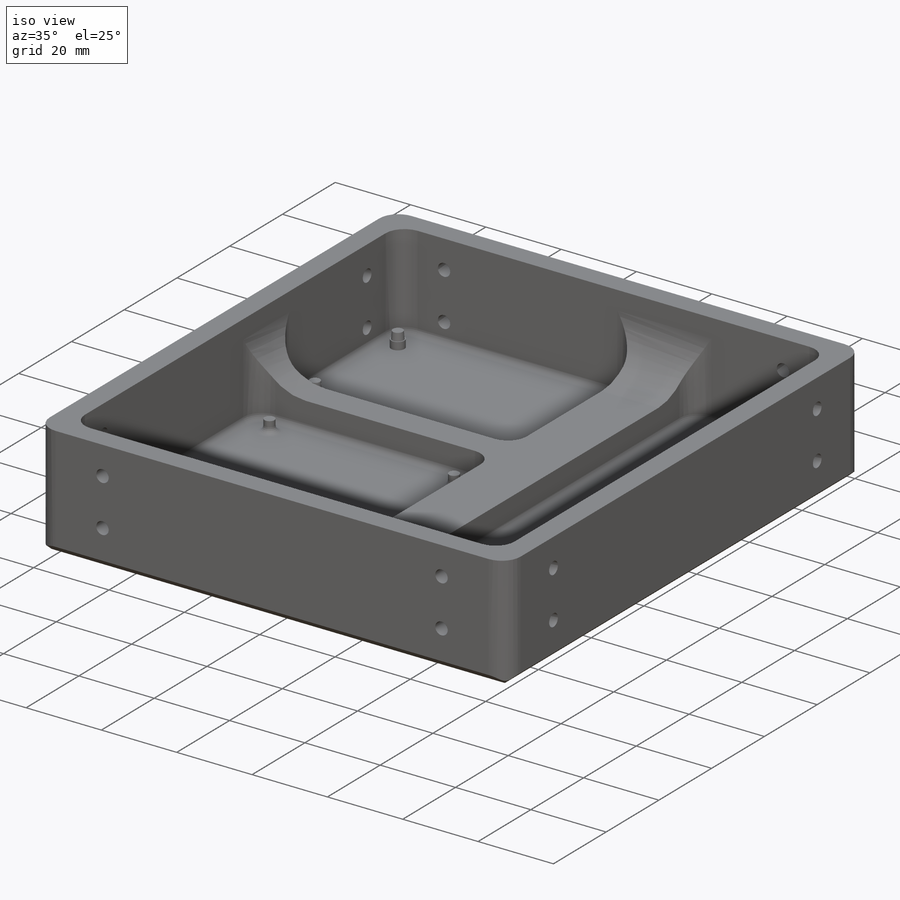
[diagram: iso view]
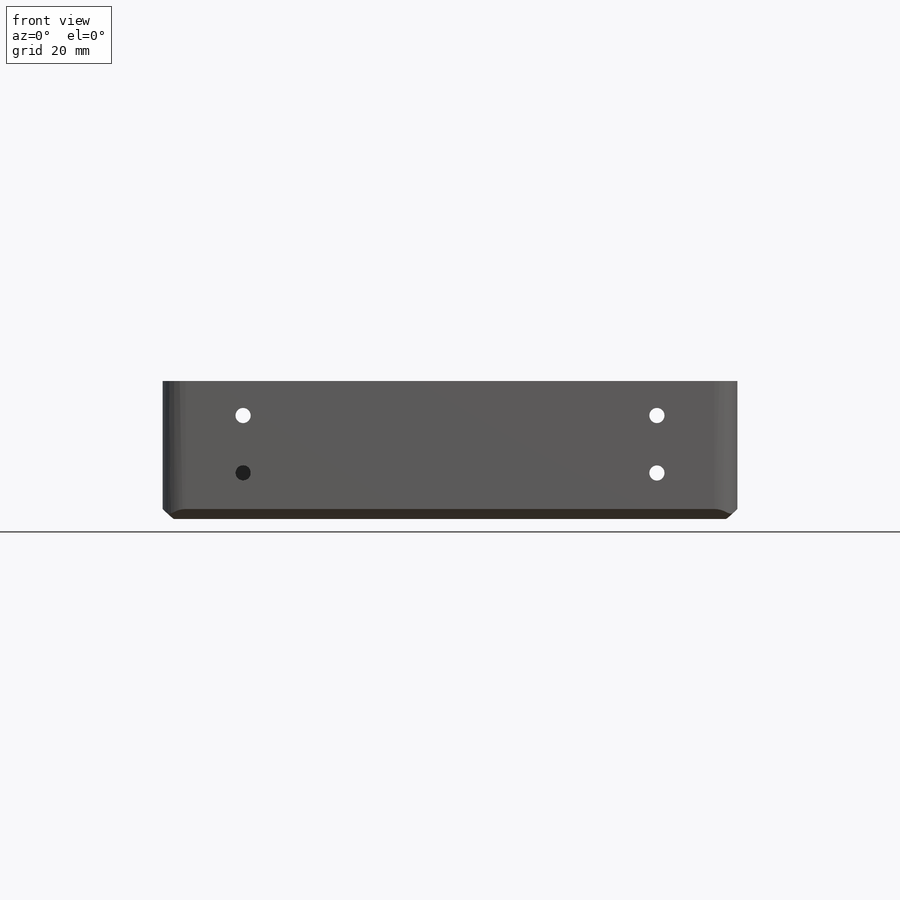
[diagram: front view]
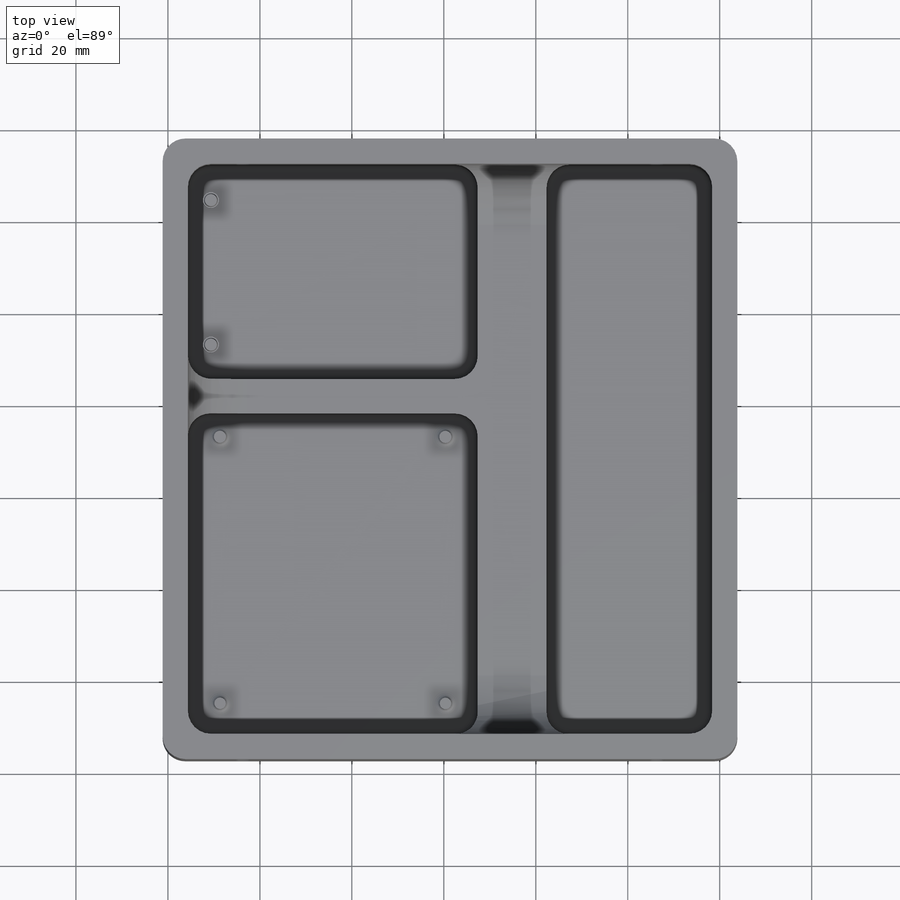
[diagram: top view]
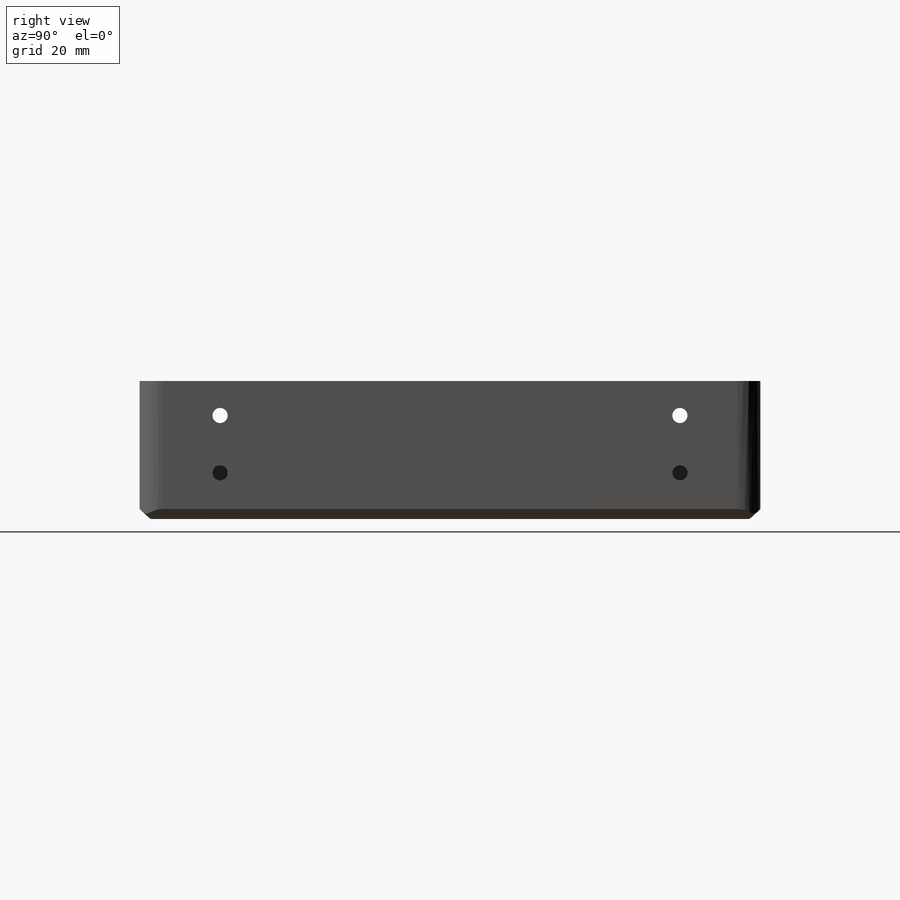
[diagram: right view]
SOLIDWORKS PART (.sldprt)
format: sldprt  version: not decoded by parser v0  size: 770,560 bytes
history: native  units: mm
features: sketch x17, cut_extrude x9, extrude x8, fillet x6, material x1, chamfer x1 (+13 scaffold rows collapsed)
feature tree (55):
  scaffold x13  (default folders/planes/origin — collapsed)
  material  "Material <not specified>"
  sketch  "Sketch1"  dims[D1=140.0mm D2=130.0mm]
  extrude  "Boss-Extrude2"  Depth=10mm
  sketch  "Sketch3"  dims[c1.D1=~3.512433mm c1.D2=~3.69604mm c1.D3=2.4mm c1.D6=2.6mm c1.D7=2.6mm c1.D8=2.6mm c1.D9=2.6mm c2.D1=49.0mm c2.D2=58.0mm c2.D3=49.0mm c2.D4=15.0mm c2.D5=15.0mm]
  extrude  "Boss-Extrude4"  Depth=2mm
  sketch  "Sketch4"  dims[D1=2.3mm D2=2.3mm D3=2.3mm D4=2.3mm]
  extrude  "Boss-Extrude5"  Depth=3mm
  chamfer  "Chamfer1"  Distance=1.5mm Angle=45deg
  sketch  "Sketch5"  dims[D1=10.0mm D2=10.0mm D3=10.0mm D4=10.0mm]
  extrude  "Boss-Extrude6"  Depth=20mm
  sketch  "Sketch7"  dims[D1=8.0mm D2=8.0mm D3=8.0mm D4=8.0mm]
  cut_extrude  "Cut-Extrude2"  [1 undecoded]
  sketch  "Sketch9"  dims[D1=15.0mm D2=36.0mm D3=0.0mm]
  extrude  "Boss-Extrude8"  Depth=5mm
  sketch  "Sketch10"  dims[D1=7.5mm D2=5.0mm]
  extrude  "Boss-Extrude9"  Depth=5mm
  sketch  "Sketch12"
  cut_extrude  "Cut-Extrude6"  Depth=5mm
  sketch  "Sketch14"
  cut_extrude  "Cut-Extrude9"  Depth=7mm
  sketch  "Sketch16"
  cut_extrude  "Cut-Extrude10"  Depth=3mm
  fillet  "Fillet12"  Radius=13mm
  fillet  "Fillet13"  Radius=5mm
  fillet  "Fillet14"  Radius=5mm
  fillet  "Fillet15"  Radius=1.5mm
  sketch  "Sketch24"  dims[c1.D1=~1.824154mm c1.D5=~4.371479mm c1.D6=~2.260183mm c2.D1=12.5mm c2.D2=10.0mm c2.D3=20.0mm c2.D4=20.0mm c2.D5=20.0mm c2.D6=12.5mm c2.D7=10.0mm]
  cut_extrude  "Cut-Extrude16"  Depth=10mm
  sketch  "Sketch25"  dims[c1.D1=~3.085633mm c1.D3=~0.330603mm c1.D4=~3.727745mm c1.D5=~2.303189mm c2.D1=20.0mm c2.D2=22.5mm c2.D3=10.0mm c2.D4=20.0mm]
  cut_extrude  "Cut-Extrude17"  Depth=10mm
  sketch  "Sketch26"  dims[c1.D1=~3.23109mm c1.D3=~2.112728mm c1.D4=~3.733426mm c1.D5=~2.829373mm c2.D1=20.0mm c2.D2=22.5mm c2.D3=12.5mm c2.D4=20.0mm]
  cut_extrude  "Cut-Extrude18"  Depth=10mm
  sketch  "Sketch27"  dims[c1.D1=~2.299573mm c1.D3=~2.328536mm c1.D4=~2.404618mm c1.D5=~3.011197mm c2.D1=20.0mm c2.D2=22.5mm c2.D3=12.5mm c2.D4=20.0mm]
  cut_extrude  "Cut-Extrude19"  Depth=10mm
  fillet  "Fillet17"  Radius=5mm
  sketch  "Sketch30"  dims[c1.D1=~3.475242mm c1.3.5=3.5mm c1.D3=2.2723mm c1.D2=3.5mm c2.D1=5.0mm c2.D3=31.43mm c2.D4=7.535mm c2.D5=7.535mm]
  extrude  "Boss-Extrude10"  Depth=2mm
  sketch  "Sketch31"  dims[D1=~0.542873mm]
  extrude  "Boss-Extrude11"  Depth=2mm
  sketch  "Sketch32"  dims[c1.D1=1.0mm c1.D2=1.0mm c2.D1=130.0mm c2.D2=2.5mm c2.D3=2.5mm c2.D4=2.5mm c2.D5=2.5mm c2.D6=0.0mm]
  cut_extrude  "Cut-Extrude22"  Depth=50mm
  fillet  "Fillet18"  Radius=5mm
decode coverage: 37 of 41 modeling features carry decoded parameters
note: ~ marks probable driven/reference dimensions
note: 1 parameter value undecoded
note: suppression state not decoded; provenance and decode notes live in map.json
